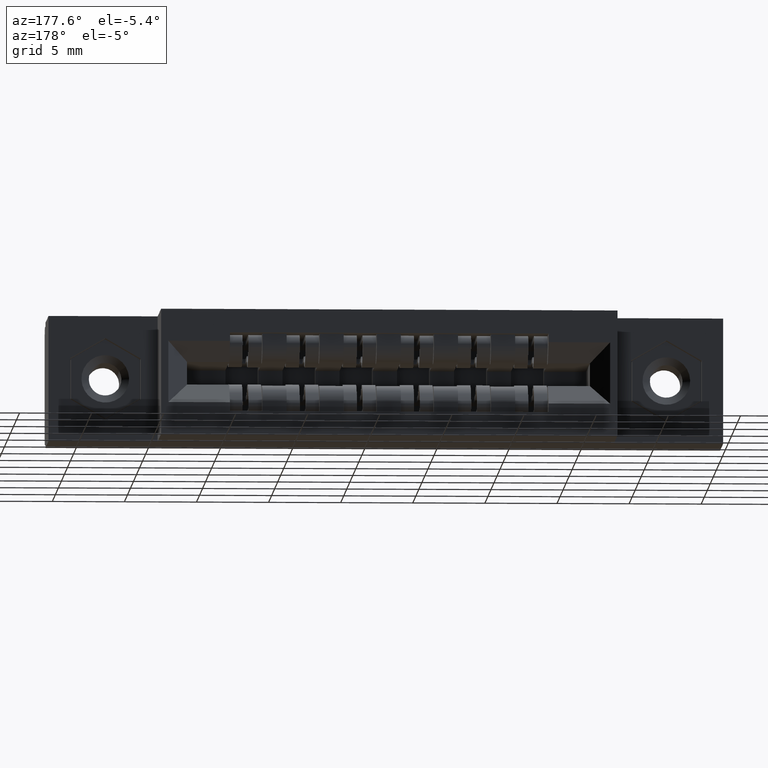
[diagram: clean part render]
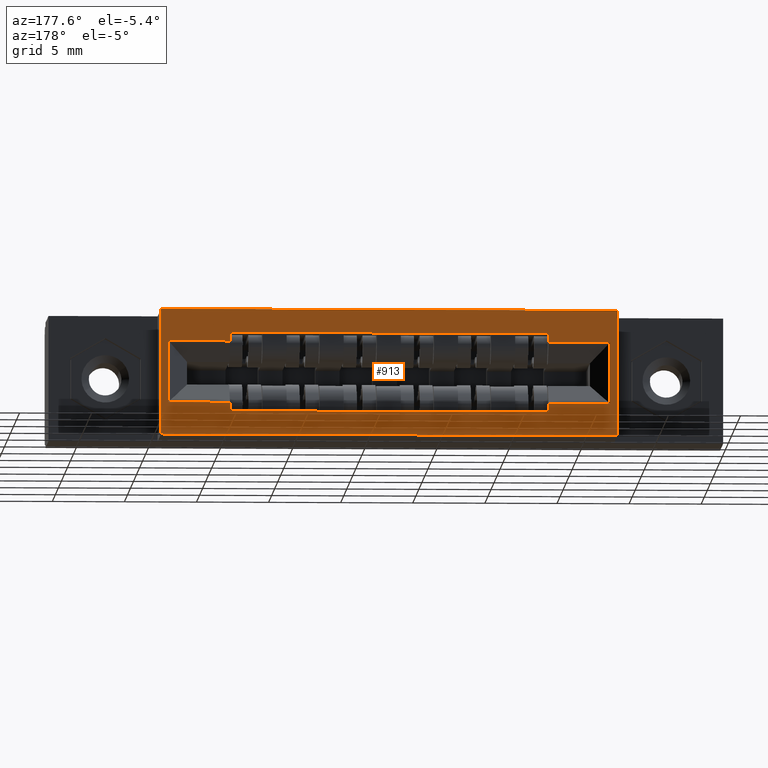
[diagram: same view with one face highlighted and labeled with its STEP entity id]
A machine part, auxiliary view. The second image highlights one B-rep face of the part: STEP entity #913.
In plain terms, the highlighted planar face has unit normal (0, -1, 0).
Its self-contained STEP definition (entity closure, byte-faithful):
#5 = VERTEX_POINT ( 'NONE', #5254 ) ;
#214 = LINE ( 'NONE', #4892, #5284 ) ;
#249 = CARTESIAN_POINT ( 'NONE',  ( 0.0000000000000000000, 0.4729999999999999800, -0.3430000000000000300 ) ) ;
#251 = FACE_OUTER_BOUND ( 'NONE', #9840, .T. ) ;
#345 = VECTOR ( 'NONE', #839, 39.37007874015748100 ) ;
#346 = CARTESIAN_POINT ( 'NONE',  ( 1.524000000000000900, 0.4729999999999999800, -0.08749999999999999400 ) ) ;
#384 = FACE_BOUND ( 'NONE', #10727, .T. ) ;
#778 = LINE ( 'NONE', #10019, #345 ) ;
#839 = DIRECTION ( 'NONE',  ( 0.0000000000000000000, 0.0000000000000000000, -1.000000000000000000 ) ) ;
#911 = EDGE_CURVE ( 'NONE', #5831, #3802, #778, .T. ) ;
#913 = ADVANCED_FACE ( 'NONE', ( #384, #251 ), #9490, .F. ) ;
#1016 = DIRECTION ( 'NONE',  ( -0.0000000000000000000, -0.0000000000000000000, 1.000000000000000000 ) ) ;
#1269 = EDGE_CURVE ( 'NONE', #7783, #8144, #10044, .T. ) ;
#1352 = CARTESIAN_POINT ( 'NONE',  ( 0.4860000000000004300, 0.4729999999999999800, -0.2790000000000000800 ) ) ;
#1363 = VERTEX_POINT ( 'NONE', #4243 ) ;
#1375 = CARTESIAN_POINT ( 'NONE',  ( 0.5760000000000004000, 0.4729999999999999800, -0.06400000000000011200 ) ) ;
#1405 = DIRECTION ( 'NONE',  ( -1.000000000000000000, -0.0000000000000000000, -0.0000000000000000000 ) ) ;
#1425 = ORIENTED_EDGE ( 'NONE', *, *, #911, .T. ) ;
#1672 = EDGE_CURVE ( 'NONE', #4144, #8545, #7995, .T. ) ;
#1677 = EDGE_CURVE ( 'NONE', #5594, #3209, #8932, .T. ) ;
#1710 = EDGE_CURVE ( 'NONE', #6864, #5594, #5642, .T. ) ;
#1898 = ORIENTED_EDGE ( 'NONE', *, *, #7602, .F. ) ;
#2150 = ORIENTED_EDGE ( 'NONE', *, *, #5125, .T. ) ;
#2336 = DIRECTION ( 'NONE',  ( 1.000000000000000000, -0.0000000000000000000, -1.897116662266849500E-016 ) ) ;
#2395 = CARTESIAN_POINT ( 'NONE',  ( 1.356000000000000500, 0.4729999999999999800, -0.06399999999999991800 ) ) ;
#2550 = ORIENTED_EDGE ( 'NONE', *, *, #9205, .T. ) ;
#2829 = CARTESIAN_POINT ( 'NONE',  ( 1.524000000000000900, 0.4729999999999999800, -0.2555000000000003400 ) ) ;
#2910 = ORIENTED_EDGE ( 'NONE', *, *, #1672, .F. ) ;
#3209 = VERTEX_POINT ( 'NONE', #5833 ) ;
#3385 = ORIENTED_EDGE ( 'NONE', *, *, #1269, .F. ) ;
#3666 = ORIENTED_EDGE ( 'NONE', *, *, #4969, .T. ) ;
#3802 = VERTEX_POINT ( 'NONE', #9942 ) ;
#3966 = EDGE_CURVE ( 'NONE', #5, #7884, #5852, .T. ) ;
#4002 = VECTOR ( 'NONE', #8460, 39.37007874015748100 ) ;
#4005 = VERTEX_POINT ( 'NONE', #7686 ) ;
#4144 = VERTEX_POINT ( 'NONE', #5821 ) ;
#4243 = CARTESIAN_POINT ( 'NONE',  ( 0.2979999999999999300, 0.4729999999999999800, 0.0000000000000000000 ) ) ;
#4597 = VECTOR ( 'NONE', #8977, 39.37007874015748100 ) ;
#4627 = VERTEX_POINT ( 'NONE', #9277 ) ;
#4862 = DIRECTION ( 'NONE',  ( -9.955714262624865200E-017, 0.0000000000000000000, -1.000000000000000000 ) ) ;
#4892 = CARTESIAN_POINT ( 'NONE',  ( 0.2979999999999999900, 0.4729999999999999800, -2.966802850262209500E-017 ) ) ;
#4963 = LINE ( 'NONE', #7984, #7051 ) ;
#4969 = EDGE_CURVE ( 'NONE', #4144, #6864, #9809, .T. ) ;
#4978 = VERTEX_POINT ( 'NONE', #10408 ) ;
#4999 = DIRECTION ( 'NONE',  ( 1.000000000000000000, 0.0000000000000000000, 0.0000000000000000000 ) ) ;
#5055 = CARTESIAN_POINT ( 'NONE',  ( 1.356000000000000500, 0.4729999999999999800, -0.2790000000000000800 ) ) ;
#5125 = EDGE_CURVE ( 'NONE', #3802, #8144, #6504, .T. ) ;
#5160 = EDGE_CURVE ( 'NONE', #5717, #3209, #8554, .T. ) ;
#5163 = DIRECTION ( 'NONE',  ( 0.0000000000000000000, 0.0000000000000000000, -1.000000000000000000 ) ) ;
#5236 = VECTOR ( 'NONE', #4999, 39.37007874015748100 ) ;
#5254 = CARTESIAN_POINT ( 'NONE',  ( 1.544000000000000700, 0.4729999999999999800, -0.3430000000000000300 ) ) ;
#5284 = VECTOR ( 'NONE', #4862, 39.37007874015748100 ) ;
#5299 = VECTOR ( 'NONE', #9153, 39.37007874015748100 ) ;
#5594 = VERTEX_POINT ( 'NONE', #346 ) ;
#5642 = LINE ( 'NONE', #6564, #9756 ) ;
#5647 = CARTESIAN_POINT ( 'NONE',  ( 1.356000000000000500, 0.4729999999999999800, -0.06399999999999991800 ) ) ;
#5717 = VERTEX_POINT ( 'NONE', #5647 ) ;
#5821 = CARTESIAN_POINT ( 'NONE',  ( 1.356000000000000500, 0.4729999999999999800, -0.2555000000000003400 ) ) ;
#5831 = VERTEX_POINT ( 'NONE', #7512 ) ;
#5833 = CARTESIAN_POINT ( 'NONE',  ( 1.356000000000000500, 0.4729999999999999800, -0.08749999999999999400 ) ) ;
#5852 = LINE ( 'NONE', #11308, #11468 ) ;
#5860 = AXIS2_PLACEMENT_3D ( 'NONE', #249, #10915, #10558 ) ;
#5956 = CARTESIAN_POINT ( 'NONE',  ( 0.4860000000000004300, 0.4729999999999999800, -0.06400000000000008500 ) ) ;
#5992 = DIRECTION ( 'NONE',  ( -1.000000000000000000, 0.0000000000000000000, 1.552186360036511700E-017 ) ) ;
#6384 = DIRECTION ( 'NONE',  ( -1.000000000000000000, 0.0000000000000000000, 0.0000000000000000000 ) ) ;
#6423 = CARTESIAN_POINT ( 'NONE',  ( 0.5760000000000004000, 0.4729999999999999800, -0.2790000000000000800 ) ) ;
#6504 = LINE ( 'NONE', #7353, #4002 ) ;
#6551 = ORIENTED_EDGE ( 'NONE', *, *, #8953, .F. ) ;
#6564 = CARTESIAN_POINT ( 'NONE',  ( 1.524000000000000900, 0.4729999999999999800, -0.3430000000000000300 ) ) ;
#6646 = CARTESIAN_POINT ( 'NONE',  ( 1.356000000000000500, 0.4729999999999999800, -0.06399999999999991800 ) ) ;
#6711 = CARTESIAN_POINT ( 'NONE',  ( 3.965836149893288200E-018, 0.4729999999999999800, -0.08749999999999995300 ) ) ;
#6735 = LINE ( 'NONE', #6423, #10664 ) ;
#6820 = DIRECTION ( 'NONE',  ( 0.0000000000000000000, 0.0000000000000000000, -1.000000000000000000 ) ) ;
#6858 = CARTESIAN_POINT ( 'NONE',  ( 1.544000000000000700, 0.4729999999999999800, 0.0000000000000000000 ) ) ;
#6864 = VERTEX_POINT ( 'NONE', #2829 ) ;
#7047 = ORIENTED_EDGE ( 'NONE', *, *, #1710, .T. ) ;
#7051 = VECTOR ( 'NONE', #7658, 39.37007874015748100 ) ;
#7175 = ORIENTED_EDGE ( 'NONE', *, *, #9790, .F. ) ;
#7353 = CARTESIAN_POINT ( 'NONE',  ( 0.0000000000000000000, 0.4729999999999999800, -0.2555000000000003400 ) ) ;
#7378 = DIRECTION ( 'NONE',  ( 0.0000000000000000000, 0.0000000000000000000, 1.000000000000000000 ) ) ;
#7468 = VECTOR ( 'NONE', #2336, 39.37007874015748100 ) ;
#7479 = ORIENTED_EDGE ( 'NONE', *, *, #8322, .T. ) ;
#7512 = CARTESIAN_POINT ( 'NONE',  ( 0.3179999999999993900, 0.4729999999999999800, -0.08749999999999996700 ) ) ;
#7602 = EDGE_CURVE ( 'NONE', #8545, #7783, #6735, .T. ) ;
#7634 = LINE ( 'NONE', #9170, #5299 ) ;
#7658 = DIRECTION ( 'NONE',  ( 1.000000000000000000, 0.0000000000000000000, 0.0000000000000000000 ) ) ;
#7686 = CARTESIAN_POINT ( 'NONE',  ( 1.544000000000000700, 0.4729999999999999800, 0.0000000000000000000 ) ) ;
#7731 = ORIENTED_EDGE ( 'NONE', *, *, #8424, .T. ) ;
#7783 = VERTEX_POINT ( 'NONE', #1352 ) ;
#7884 = VERTEX_POINT ( 'NONE', #9425 ) ;
#7984 = CARTESIAN_POINT ( 'NONE',  ( 0.0000000000000000000, 0.4729999999999999800, 0.0000000000000000000 ) ) ;
#7995 = LINE ( 'NONE', #6646, #9322 ) ;
#8000 = ORIENTED_EDGE ( 'NONE', *, *, #3966, .T. ) ;
#8144 = VERTEX_POINT ( 'NONE', #10815 ) ;
#8167 = VECTOR ( 'NONE', #5992, 39.37007874015748100 ) ;
#8259 = ORIENTED_EDGE ( 'NONE', *, *, #8550, .F. ) ;
#8322 = EDGE_CURVE ( 'NONE', #4627, #5831, #7634, .T. ) ;
#8424 = EDGE_CURVE ( 'NONE', #4005, #5, #9965, .T. ) ;
#8460 = DIRECTION ( 'NONE',  ( 1.000000000000000000, 0.0000000000000000000, 0.0000000000000000000 ) ) ;
#8545 = VERTEX_POINT ( 'NONE', #5055 ) ;
#8550 = EDGE_CURVE ( 'NONE', #1363, #7884, #214, .T. ) ;
#8554 = LINE ( 'NONE', #2395, #10297 ) ;
#8829 = CARTESIAN_POINT ( 'NONE',  ( 0.4860000000000004300, 0.4729999999999999800, -0.06400000000000008500 ) ) ;
#8932 = LINE ( 'NONE', #6711, #8167 ) ;
#8953 = EDGE_CURVE ( 'NONE', #4978, #5717, #11402, .T. ) ;
#8977 = DIRECTION ( 'NONE',  ( -0.0000000000000000000, -0.0000000000000000000, 1.000000000000000000 ) ) ;
#9064 = LINE ( 'NONE', #8829, #4597 ) ;
#9153 = DIRECTION ( 'NONE',  ( -1.000000000000000000, 0.0000000000000000000, 1.552186360036511700E-017 ) ) ;
#9170 = CARTESIAN_POINT ( 'NONE',  ( 3.965836149893288200E-018, 0.4729999999999999800, -0.08749999999999995300 ) ) ;
#9205 = EDGE_CURVE ( 'NONE', #1363, #4005, #4963, .T. ) ;
#9277 = CARTESIAN_POINT ( 'NONE',  ( 0.4860000000000004300, 0.4729999999999999800, -0.08749999999999996700 ) ) ;
#9322 = VECTOR ( 'NONE', #5163, 39.37007874015748100 ) ;
#9425 = CARTESIAN_POINT ( 'NONE',  ( 0.2979999999999999300, 0.4729999999999999800, -0.3430000000000000300 ) ) ;
#9490 = PLANE ( 'NONE',  #5860 ) ;
#9756 = VECTOR ( 'NONE', #7378, 39.37007874015748100 ) ;
#9790 = EDGE_CURVE ( 'NONE', #4627, #4978, #9064, .T. ) ;
#9809 = LINE ( 'NONE', #10897, #5236 ) ;
#9840 = EDGE_LOOP ( 'NONE', ( #7731, #8000, #8259, #2550 ) ) ;
#9942 = CARTESIAN_POINT ( 'NONE',  ( 0.3179999999999993900, 0.4729999999999999800, -0.2555000000000003400 ) ) ;
#9965 = LINE ( 'NONE', #6858, #11418 ) ;
#10019 = CARTESIAN_POINT ( 'NONE',  ( 0.3179999999999993900, 0.4729999999999999800, -0.3430000000000000300 ) ) ;
#10044 = LINE ( 'NONE', #5956, #10079 ) ;
#10079 = VECTOR ( 'NONE', #1016, 39.37007874015748100 ) ;
#10207 = ORIENTED_EDGE ( 'NONE', *, *, #1677, .T. ) ;
#10257 = DIRECTION ( 'NONE',  ( 0.0000000000000000000, 0.0000000000000000000, -1.000000000000000000 ) ) ;
#10297 = VECTOR ( 'NONE', #10257, 39.37007874015748100 ) ;
#10408 = CARTESIAN_POINT ( 'NONE',  ( 0.4860000000000004300, 0.4729999999999999800, -0.06400000000000008500 ) ) ;
#10558 = DIRECTION ( 'NONE',  ( 0.0000000000000000000, -0.0000000000000000000, -1.000000000000000000 ) ) ;
#10664 = VECTOR ( 'NONE', #6384, 39.37007874015748100 ) ;
#10727 = EDGE_LOOP ( 'NONE', ( #1425, #2150, #3385, #1898, #2910, #3666, #7047, #10207, #11306, #6551, #7175, #7479 ) ) ;
#10815 = CARTESIAN_POINT ( 'NONE',  ( 0.4860000000000004300, 0.4729999999999999800, -0.2555000000000003400 ) ) ;
#10897 = CARTESIAN_POINT ( 'NONE',  ( 0.0000000000000000000, 0.4729999999999999800, -0.2555000000000003400 ) ) ;
#10915 = DIRECTION ( 'NONE',  ( 0.0000000000000000000, -1.000000000000000000, 0.0000000000000000000 ) ) ;
#11306 = ORIENTED_EDGE ( 'NONE', *, *, #5160, .F. ) ;
#11308 = CARTESIAN_POINT ( 'NONE',  ( 0.0000000000000000000, 0.4729999999999999800, -0.3430000000000000300 ) ) ;
#11402 = LINE ( 'NONE', #1375, #7468 ) ;
#11418 = VECTOR ( 'NONE', #6820, 39.37007874015748100 ) ;
#11468 = VECTOR ( 'NONE', #1405, 39.37007874015748100 ) ;